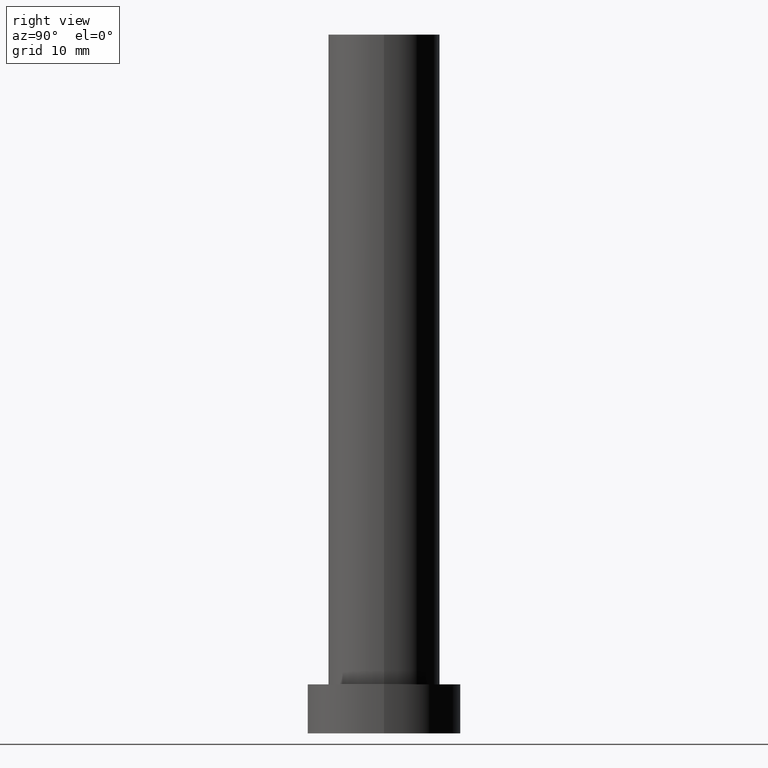
[diagram: clean part render]
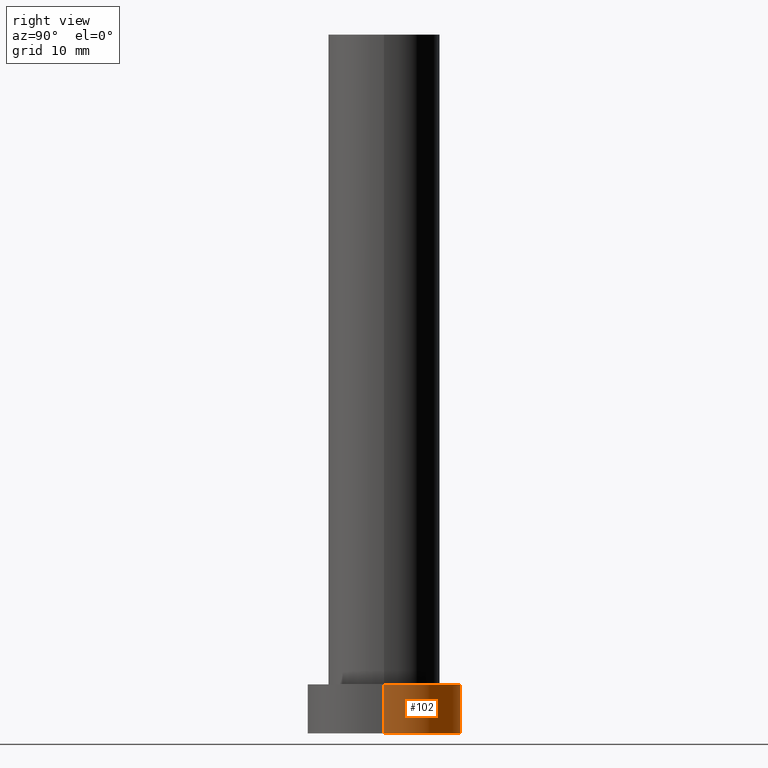
[diagram: same view with one face highlighted and labeled with its STEP entity id]
A machine part, right view. The second image highlights one B-rep face of the part: STEP entity #102.
In plain terms, the highlighted cylindrical surface (partial cylindrical patch) has radius 11 mm, axis along (-0, -0, -1).
Its self-contained STEP definition (entity closure, byte-faithful):
#6 = VERTEX_POINT ( 'NONE', #197 ) ;
#8 = EDGE_LOOP ( 'NONE', ( #91, #89, #141, #10 ) ) ;
#10 = ORIENTED_EDGE ( 'NONE', *, *, #92, .F. ) ;
#12 = CARTESIAN_POINT ( 'NONE',  ( 0.000000000000000000, 0.000000000000000000, 7.000000000000000000 ) ) ;
#19 = FACE_OUTER_BOUND ( 'NONE', #8, .T. ) ;
#22 = DIRECTION ( 'NONE',  ( -0.000000000000000000, -0.000000000000000000, -1.000000000000000000 ) ) ;
#29 = AXIS2_PLACEMENT_3D ( 'NONE', #31, #22, #150 ) ;
#31 = CARTESIAN_POINT ( 'NONE',  ( 0.000000000000000000, 0.000000000000000000, 7.000000000000000000 ) ) ;
#37 = CARTESIAN_POINT ( 'NONE',  ( -11.00000000000000000, 0.000000000000000000, 0.000000000000000000 ) ) ;
#39 = CARTESIAN_POINT ( 'NONE',  ( 11.00000000000000000, 1.347111479062088405E-15, 7.000000000000000000 ) ) ;
#58 = EDGE_CURVE ( 'NONE', #119, #199, #165, .T. ) ;
#62 = DIRECTION ( 'NONE',  ( -0.000000000000000000, -0.000000000000000000, -1.000000000000000000 ) ) ;
#63 = AXIS2_PLACEMENT_3D ( 'NONE', #112, #148, #243 ) ;
#66 = VECTOR ( 'NONE', #62, 1000.000000000000000 ) ;
#73 = VERTEX_POINT ( 'NONE', #39 ) ;
#75 = CARTESIAN_POINT ( 'NONE',  ( 11.00000000000000000, 1.347111479062088405E-15, 7.000000000000000000 ) ) ;
#82 = CYLINDRICAL_SURFACE ( 'NONE', #29, 11.00000000000000000 ) ;
#87 = AXIS2_PLACEMENT_3D ( 'NONE', #12, #93, #162 ) ;
#89 = ORIENTED_EDGE ( 'NONE', *, *, #214, .T. ) ;
#91 = ORIENTED_EDGE ( 'NONE', *, *, #231, .F. ) ;
#92 = EDGE_CURVE ( 'NONE', #6, #199, #113, .T. ) ;
#93 = DIRECTION ( 'NONE',  ( 0.000000000000000000, 0.000000000000000000, 1.000000000000000000 ) ) ;
#102 = ADVANCED_FACE ( 'NONE', ( #19 ), #82, .T. ) ;
#112 = CARTESIAN_POINT ( 'NONE',  ( 0.000000000000000000, 0.000000000000000000, 0.000000000000000000 ) ) ;
#113 = LINE ( 'NONE', #205, #251 ) ;
#119 = VERTEX_POINT ( 'NONE', #229 ) ;
#130 = DIRECTION ( 'NONE',  ( -0.000000000000000000, -0.000000000000000000, -1.000000000000000000 ) ) ;
#141 = ORIENTED_EDGE ( 'NONE', *, *, #58, .T. ) ;
#148 = DIRECTION ( 'NONE',  ( 0.000000000000000000, 0.000000000000000000, 1.000000000000000000 ) ) ;
#150 = DIRECTION ( 'NONE',  ( -1.000000000000000000, 0.000000000000000000, 0.000000000000000000 ) ) ;
#162 = DIRECTION ( 'NONE',  ( 1.000000000000000000, 0.000000000000000000, 0.000000000000000000 ) ) ;
#165 = CIRCLE ( 'NONE', #63, 11.00000000000000000 ) ;
#193 = CIRCLE ( 'NONE', #87, 11.00000000000000000 ) ;
#197 = CARTESIAN_POINT ( 'NONE',  ( -11.00000000000000000, 0.000000000000000000, 7.000000000000000000 ) ) ;
#199 = VERTEX_POINT ( 'NONE', #37 ) ;
#205 = CARTESIAN_POINT ( 'NONE',  ( -11.00000000000000000, 0.000000000000000000, 7.000000000000000000 ) ) ;
#214 = EDGE_CURVE ( 'NONE', #73, #119, #249, .T. ) ;
#229 = CARTESIAN_POINT ( 'NONE',  ( 11.00000000000000000, 1.347111479062088405E-15, 0.000000000000000000 ) ) ;
#231 = EDGE_CURVE ( 'NONE', #73, #6, #193, .T. ) ;
#243 = DIRECTION ( 'NONE',  ( 1.000000000000000000, 0.000000000000000000, 0.000000000000000000 ) ) ;
#249 = LINE ( 'NONE', #75, #66 ) ;
#251 = VECTOR ( 'NONE', #130, 1000.000000000000000 ) ;